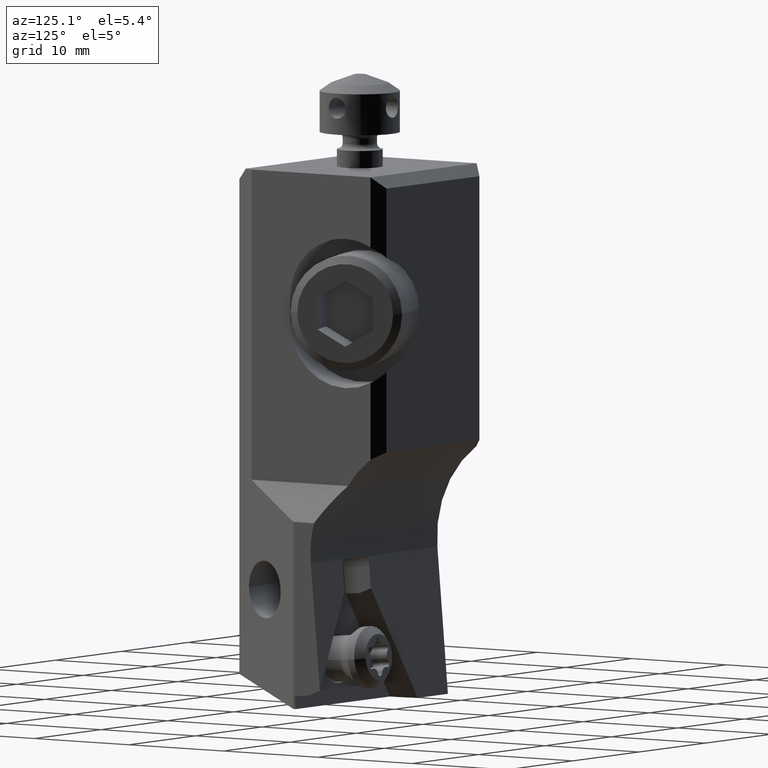
[diagram: clean part render]
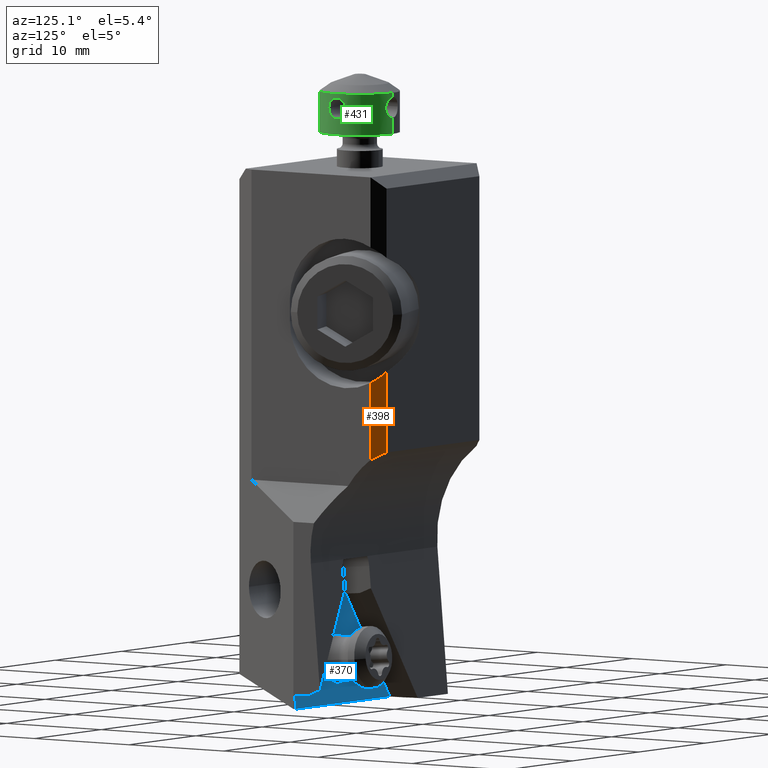
[diagram: same view with three faces highlighted in distinct colors, each labeled with its STEP entity id]
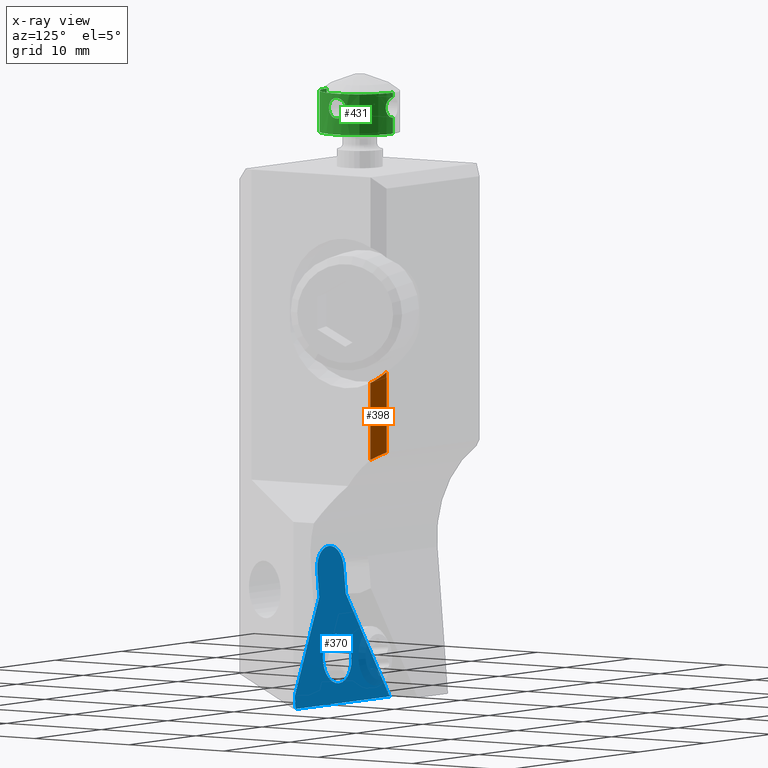
[diagram: x-ray of the same camera — body ghosted, the three highlighted faces saturated]
A machine part, auxiliary view with three faces highlighted in distinct colors.
The next image is the same camera in x-ray (body ghosted, the three faces saturated) — at least one of them is partly hidden behind the body in this view.
Their STEP definitions:

[orange] entity #398 — the highlighted planar face has unit normal (0.7071, 0.7071, 0).
#398=ADVANCED_FACE('',(#582),#527,.T.);
#527=PLANE('',#2741);
#582=FACE_OUTER_BOUND('',#723,.T.);
#723=EDGE_LOOP('',(#1429,#1430,#1431,#1432));
#890=LINE('',#3959,#1064);
#902=LINE('',#3998,#1076);
#1064=VECTOR('',#3162,1.);
#1076=VECTOR('',#3204,1.);
#1429=ORIENTED_EDGE('',*,*,#2246,.F.);
#1430=ORIENTED_EDGE('',*,*,#2198,.F.);
#1431=ORIENTED_EDGE('',*,*,#2266,.T.);
#1432=ORIENTED_EDGE('',*,*,#2248,.F.);
#1950=VERTEX_POINT('',#3862);
#1951=VERTEX_POINT('',#3864);
#1982=VERTEX_POINT('',#3960);
#1983=VERTEX_POINT('',#3964);
#2198=EDGE_CURVE('',#1950,#1951,#2536,.T.);
#2246=EDGE_CURVE('',#1951,#1982,#890,.T.);
#2248=EDGE_CURVE('',#1982,#1983,#2541,.T.);
#2266=EDGE_CURVE('',#1950,#1983,#902,.T.);
#2536=ELLIPSE('',#2680,14.142135623731,10.);
#2541=ELLIPSE('',#2713,6.06857855429567,5.5);
#2680=AXIS2_PLACEMENT_3D('',#3863,#3066,#3067);
#2713=AXIS2_PLACEMENT_3D('',#3963,#3167,#3168);
#2741=AXIS2_PLACEMENT_3D('',#4133,#3245,#3246);
#3066=DIRECTION('',(0.707106781186548,0.707106781186548,0.));
#3067=DIRECTION('',(-0.707106781186548,0.707106781186548,0.));
#3162=DIRECTION('',(1.64470596048E-13,-2.383471905157E-13,1.));
#3167=DIRECTION('',(0.707106781186548,0.707106781186548,0.));
#3168=DIRECTION('',(-0.707106781186548,0.707106781186548,0.));
#3204=DIRECTION('',(1.171265605603E-13,-2.995492731031E-13,1.));
#3245=DIRECTION('',(0.707106781186547,0.707106781186547,0.));
#3246=DIRECTION('',(0.707106781186547,-0.707106781186547,0.));
#3862=CARTESIAN_POINT('',(-1.0000000000003,15.5,-23.9708427524502));
#3863=CARTESIAN_POINT('',(-5.8086696392806,20.30866963928,-32.73877844452));
#3864=CARTESIAN_POINT('',(3.15417990871427E-13,14.5,-24.5987933694903));
#3959=CARTESIAN_POINT('',(-7.079522153693E-13,14.5,-24.59879336949));
#3960=CARTESIAN_POINT('',(1.97619698383605E-13,14.4999999999989,-17.8912624269099));
#3963=CARTESIAN_POINT('',(1.96226881240358,12.5377311875958,-13.));
#3964=CARTESIAN_POINT('',(-0.999999999999891,15.499999999999,-16.9792560530127));
#3998=CARTESIAN_POINT('',(-1.,15.5,-23.97084275245));
#4133=CARTESIAN_POINT('',(-0.5000000000006,15.,-20.78902471125));

[blue] entity #370 — the highlighted planar face has unit normal (0, 0.9962, 0.0872).
#138=FACE_BOUND('',#691,.T.);
#139=FACE_BOUND('',#692,.T.);
#229=CIRCLE('',#2688,1.999999999999);
#230=CIRCLE('',#2689,1.999999999999);
#233=CIRCLE('',#2696,2.149999999994);
#234=CIRCLE('',#2697,2.149999999994);
#370=ADVANCED_FACE('',(#138,#139),#507,.T.);
#507=PLANE('',#2698);
#691=EDGE_LOOP('',(#1271,#1272,#1273,#1274,#1275,#1276,#1277,#1278));
#692=EDGE_LOOP('',(#1279,#1280));
#869=LINE('',#3908,#1043);
#870=LINE('',#3910,#1044);
#871=LINE('',#3912,#1045);
#872=LINE('',#3914,#1046);
#873=LINE('',#3916,#1047);
#874=LINE('',#3917,#1048);
#1043=VECTOR('',#3109,1.);
#1044=VECTOR('',#3112,1.);
#1045=VECTOR('',#3113,1.);
#1046=VECTOR('',#3114,1.);
#1047=VECTOR('',#3115,1.);
#1048=VECTOR('',#3116,1.);
#1271=ORIENTED_EDGE('',*,*,#2222,.F.);
#1272=ORIENTED_EDGE('',*,*,#2221,.T.);
#1273=ORIENTED_EDGE('',*,*,#2223,.T.);
#1274=ORIENTED_EDGE('',*,*,#2224,.F.);
#1275=ORIENTED_EDGE('',*,*,#2225,.F.);
#1276=ORIENTED_EDGE('',*,*,#2208,.F.);
#1277=ORIENTED_EDGE('',*,*,#2207,.F.);
#1278=ORIENTED_EDGE('',*,*,#2226,.F.);
#1279=ORIENTED_EDGE('',*,*,#2227,.F.);
#1280=ORIENTED_EDGE('',*,*,#2228,.F.);
#1958=VERTEX_POINT('',#3881);
#1959=VERTEX_POINT('',#3883);
#1960=VERTEX_POINT('',#3885);
#1966=VERTEX_POINT('',#3904);
#1967=VERTEX_POINT('',#3907);
#1968=VERTEX_POINT('',#3911);
#1969=VERTEX_POINT('',#3913);
#1970=VERTEX_POINT('',#3915);
#1971=VERTEX_POINT('',#3919);
#1972=VERTEX_POINT('',#3920);
#2207=EDGE_CURVE('',#1958,#1959,#229,.T.);
#2208=EDGE_CURVE('',#1959,#1960,#230,.T.);
#2221=EDGE_CURVE('',#1966,#1967,#869,.T.);
#2222=EDGE_CURVE('',#1966,#1968,#870,.T.);
#2223=EDGE_CURVE('',#1967,#1969,#871,.T.);
#2224=EDGE_CURVE('',#1970,#1969,#872,.T.);
#2225=EDGE_CURVE('',#1960,#1970,#873,.T.);
#2226=EDGE_CURVE('',#1968,#1958,#874,.T.);
#2227=EDGE_CURVE('',#1971,#1972,#233,.T.);
#2228=EDGE_CURVE('',#1972,#1971,#234,.T.);
#2688=AXIS2_PLACEMENT_3D('',#3882,#3085,#3086);
#2689=AXIS2_PLACEMENT_3D('',#3884,#3087,#3088);
#2696=AXIS2_PLACEMENT_3D('',#3918,#3117,#3118);
#2697=AXIS2_PLACEMENT_3D('',#3921,#3119,#3120);
#2698=AXIS2_PLACEMENT_3D('',#3922,#3121,#3122);
#3085=DIRECTION('',(0.,-0.996194698091567,-0.0871557427496971));
#3086=DIRECTION('',(0.999990407858681,0.000381740070145801,-0.0043633089677254));
#3087=DIRECTION('',(0.,-0.996194698091567,-0.0871557427496971));
#3088=DIRECTION('',(0.,-0.0871557427496972,0.996194698091568));
#3109=DIRECTION('',(-3.21655640470508E-13,0.087155742747912,-0.996194698091723));
#3112=DIRECTION('',(-0.496202033360169,-0.0756692333341252,0.864903294719045));
#3113=DIRECTION('',(-1.,0.,-4.362512047084E-14));
#3114=DIRECTION('',(-0.503788374498488,0.0752874932640382,-0.860539985752079));
#3115=DIRECTION('',(-0.00437997609818303,0.0871549067376606,-0.996185142451407));
#3116=DIRECTION('',(0.00437997609794579,-0.0871549067371558,0.996185142451452));
#3117=DIRECTION('',(0.,0.996194698091544,0.0871557427499638));
#3118=DIRECTION('',(0.,-0.0871557427499636,0.996194698091543));
#3119=DIRECTION('',(0.,0.996194698091544,0.0871557427499638));
#3120=DIRECTION('',(0.,0.0871557427499636,-0.996194698091543));
#3121=DIRECTION('',(0.,0.996194698091742,0.0871557427477036));
#3122=DIRECTION('',(0.,0.0871557427477036,-0.996194698091742));
#3881=CARTESIAN_POINT('',(-1.611685207143,7.73536017747,-34.74135189727));
#3882=CARTESIAN_POINT('',(-3.61166602286,7.734596697332,-34.73262527933));
#3883=CARTESIAN_POINT('',(-3.61166602286,7.560285211833,-32.74023588315));
#3884=CARTESIAN_POINT('',(-3.61166602286,7.734596697332,-34.73262527933));
#3885=CARTESIAN_POINT('',(-5.611646838576,7.733833217191,-34.7238986614));
#3904=CARTESIAN_POINT('',(3.08,8.653331744864,-45.23381492504));
#3907=CARTESIAN_POINT('',(3.08,8.752002604162,-46.36162800757));
#3908=CARTESIAN_POINT('',(3.08,8.653331744864,-45.23381492504));
#3910=CARTESIAN_POINT('',(3.08,8.653331744864,-45.23381492504));
#3911=CARTESIAN_POINT('',(-1.621784684664,7.93632452105,-37.03838485538));
#3912=CARTESIAN_POINT('',(3.08,8.752002604162,-46.36162800757));
#3913=CARTESIAN_POINT('',(-11.09009680293,8.752002604162,-46.36162800757));
#3914=CARTESIAN_POINT('',(-5.621746316098,7.93479756077,-37.02093161951));
#3915=CARTESIAN_POINT('',(-5.621746316098,7.93479756077,-37.02093161951));
#3916=CARTESIAN_POINT('',(-5.611646838577,7.733833217189,-34.7238986614));
#3917=CARTESIAN_POINT('',(-1.621784684664,7.93632452105,-37.03838485538));
#3918=CARTESIAN_POINT('',(-3.645829836426,8.414404969887,-42.50286939045));
#3919=CARTESIAN_POINT('',(-3.645829836426,8.227020122975,-40.36105078956));
#3920=CARTESIAN_POINT('',(-3.645829836426,8.601789816799,-44.64468799134));
#3921=CARTESIAN_POINT('',(-3.645829836426,8.414404969887,-42.50286939045));
#3922=CARTESIAN_POINT('',(-4.005048401465,8.156143907998,-39.55093194536));

[green] entity #431 — the highlighted cylindrical surface (partial cylindrical patch) has radius 3.5 mm, axis along (0, 0, 1).
#74=B_SPLINE_CURVE_WITH_KNOTS('',3,(#4305,#4306,#4307,#4308,#4309,#4310,
#4311,#4312,#4313,#4314,#4315,#4316,#4317,#4318,#4319,#4320,#4321,#4322,
#4323,#4324,#4325,#4326),.UNSPECIFIED.,.F.,.F.,(4,1,1,1,1,1,1,1,1,1,1,1,
1,1,1,1,1,1,1,4),(0.,0.05263157894737,0.1052631578947,0.1578947368421,0.2105263157895,
0.2631578947368,0.3157894736842,0.3684210526316,0.4210526315789,0.4736842105263,
0.5263157894737,0.5789473684211,0.6315789473684,0.6842105263158,0.7368421052632,
0.7894736842105,0.8421052631579,0.8947368421053,0.9473684210526,1.),
 .UNSPECIFIED.);
#75=B_SPLINE_CURVE_WITH_KNOTS('',3,(#4328,#4329,#4330,#4331,#4332,#4333,
#4334,#4335,#4336,#4337,#4338,#4339,#4340,#4341,#4342,#4343,#4344,#4345,
#4346,#4347,#4348,#4349),.UNSPECIFIED.,.F.,.F.,(4,1,1,1,1,1,1,1,1,1,1,1,
1,1,1,1,1,1,1,4),(0.,0.05263157894737,0.1052631578947,0.1578947368421,0.2105263157895,
0.2631578947368,0.3157894736842,0.3684210526316,0.4210526315789,0.4736842105263,
0.5263157894737,0.5789473684211,0.6315789473684,0.6842105263158,0.7368421052632,
0.7894736842105,0.8421052631579,0.8947368421053,0.9473684210526,1.),
 .UNSPECIFIED.);
#76=B_SPLINE_CURVE_WITH_KNOTS('',3,(#4354,#4355,#4356,#4357,#4358,#4359,
#4360,#4361,#4362,#4363,#4364,#4365,#4366,#4367,#4368,#4369,#4370,#4371,
#4372,#4373,#4374,#4375),.UNSPECIFIED.,.F.,.F.,(4,1,1,1,1,1,1,1,1,1,1,1,
1,1,1,1,1,1,1,4),(0.,0.05263157894737,0.1052631578947,0.1578947368421,0.2105263157895,
0.2631578947368,0.3157894736842,0.3684210526316,0.4210526315789,0.4736842105263,
0.5263157894737,0.5789473684211,0.6315789473684,0.6842105263158,0.7368421052632,
0.7894736842105,0.8421052631579,0.8947368421053,0.9473684210526,1.),
 .UNSPECIFIED.);
#77=B_SPLINE_CURVE_WITH_KNOTS('',3,(#4377,#4378,#4379,#4380,#4381,#4382,
#4383,#4384,#4385,#4386,#4387,#4388,#4389,#4390,#4391,#4392,#4393,#4394,
#4395,#4396,#4397,#4398),.UNSPECIFIED.,.F.,.F.,(4,1,1,1,1,1,1,1,1,1,1,1,
1,1,1,1,1,1,1,4),(0.,0.05263157894737,0.1052631578947,0.1578947368421,0.2105263157895,
0.2631578947368,0.3157894736842,0.3684210526316,0.4210526315789,0.4736842105263,
0.5263157894737,0.5789473684211,0.6315789473684,0.6842105263158,0.7368421052632,
0.7894736842105,0.8421052631579,0.8947368421053,0.9473684210526,1.),
 .UNSPECIFIED.);
#78=B_SPLINE_CURVE_WITH_KNOTS('',3,(#4403,#4404,#4405,#4406,#4407,#4408,
#4409,#4410,#4411,#4412,#4413,#4414,#4415,#4416,#4417,#4418,#4419,#4420,
#4421,#4422,#4423,#4424,#4425,#4426,#4427,#4428,#4429,#4430,#4431,#4432,
#4433),.UNSPECIFIED.,.F.,.F.,(4,3,3,3,3,3,3,3,3,3,4),(0.,0.10499181573253,
0.209833584549119,0.316913861721892,0.425643838817805,0.532012948903621,
0.635811937228342,0.740586222170034,0.848427228178288,0.956892987707002,
1.),.UNSPECIFIED.);
#79=B_SPLINE_CURVE_WITH_KNOTS('',3,(#4436,#4437,#4438,#4439,#4440,#4441,
#4442,#4443,#4444,#4445,#4446,#4447,#4448,#4449,#4450,#4451,#4452,#4453,
#4454,#4455,#4456,#4457,#4458,#4459,#4460,#4461,#4462,#4463,#4464,#4465,
#4466),.UNSPECIFIED.,.F.,.F.,(4,3,3,3,3,3,3,3,3,3,4),(0.,0.10499181573253,
0.209833584549118,0.316913861721892,0.425643838817805,0.532012948903621,
0.635811937228341,0.740586222170035,0.848427228178287,0.956892987707002,
1.),.UNSPECIFIED.);
#150=FACE_BOUND('',#758,.T.);
#151=FACE_BOUND('',#759,.T.);
#189=CYLINDRICAL_SURFACE('',#2831,3.5);
#297=CIRCLE('',#2827,3.5);
#299=CIRCLE('',#2830,3.5);
#431=ADVANCED_FACE('',(#150,#151),#189,.T.);
#758=EDGE_LOOP('',(#1591,#1592,#1593,#1594,#1595,#1596,#1597,#1598,#1599,
#1600));
#759=EDGE_LOOP('',(#1601,#1602));
#939=LINE('',#4302,#1113);
#940=LINE('',#4351,#1114);
#941=LINE('',#4352,#1115);
#942=LINE('',#4400,#1116);
#1113=VECTOR('',#3449,1.);
#1114=VECTOR('',#3450,1.);
#1115=VECTOR('',#3451,1.);
#1116=VECTOR('',#3452,1.);
#1591=ORIENTED_EDGE('',*,*,#2368,.T.);
#1592=ORIENTED_EDGE('',*,*,#2369,.T.);
#1593=ORIENTED_EDGE('',*,*,#2370,.F.);
#1594=ORIENTED_EDGE('',*,*,#2371,.T.);
#1595=ORIENTED_EDGE('',*,*,#2366,.T.);
#1596=ORIENTED_EDGE('',*,*,#2372,.T.);
#1597=ORIENTED_EDGE('',*,*,#2373,.T.);
#1598=ORIENTED_EDGE('',*,*,#2374,.F.);
#1599=ORIENTED_EDGE('',*,*,#2375,.T.);
#1600=ORIENTED_EDGE('',*,*,#2376,.T.);
#1601=ORIENTED_EDGE('',*,*,#2377,.T.);
#1602=ORIENTED_EDGE('',*,*,#2378,.T.);
#2057=VERTEX_POINT('',#4297);
#2058=VERTEX_POINT('',#4298);
#2059=VERTEX_POINT('',#4303);
#2060=VERTEX_POINT('',#4304);
#2061=VERTEX_POINT('',#4327);
#2062=VERTEX_POINT('',#4350);
#2063=VERTEX_POINT('',#4353);
#2064=VERTEX_POINT('',#4376);
#2065=VERTEX_POINT('',#4399);
#2066=VERTEX_POINT('',#4401);
#2067=VERTEX_POINT('',#4434);
#2068=VERTEX_POINT('',#4435);
#2366=EDGE_CURVE('',#2058,#2057,#297,.T.);
#2368=EDGE_CURVE('',#2059,#2060,#939,.T.);
#2369=EDGE_CURVE('',#2060,#2061,#74,.T.);
#2370=EDGE_CURVE('',#2062,#2061,#75,.T.);
#2371=EDGE_CURVE('',#2062,#2058,#940,.T.);
#2372=EDGE_CURVE('',#2057,#2063,#941,.T.);
#2373=EDGE_CURVE('',#2063,#2064,#76,.T.);
#2374=EDGE_CURVE('',#2065,#2064,#77,.T.);
#2375=EDGE_CURVE('',#2065,#2066,#942,.T.);
#2376=EDGE_CURVE('',#2066,#2059,#299,.T.);
#2377=EDGE_CURVE('',#2067,#2068,#78,.T.);
#2378=EDGE_CURVE('',#2068,#2067,#79,.T.);
#2827=AXIS2_PLACEMENT_3D('',#4299,#3443,#3444);
#2830=AXIS2_PLACEMENT_3D('',#4402,#3453,#3454);
#2831=AXIS2_PLACEMENT_3D('',#4467,#3455,#3456);
#3443=DIRECTION('',(0.,0.,1.));
#3444=DIRECTION('',(0.,-1.,0.));
#3449=DIRECTION('',(0.,1.242033891488E-13,-1.));
#3450=DIRECTION('',(0.,0.,-1.));
#3451=DIRECTION('',(0.,0.,1.));
#3452=DIRECTION('',(0.,1.1942633572E-13,1.));
#3453=DIRECTION('',(0.,0.,-1.));
#3454=DIRECTION('',(0.,1.,0.));
#3455=DIRECTION('',(0.,0.,1.));
#3456=DIRECTION('',(0.,1.,0.));
#4297=CARTESIAN_POINT('',(-8.,11.25,3.));
#4298=CARTESIAN_POINT('',(-8.,4.25,3.));
#4299=CARTESIAN_POINT('',(-8.,7.75,3.));
#4302=CARTESIAN_POINT('',(-8.,4.25,6.571851993258));
#4303=CARTESIAN_POINT('',(-8.,4.25,6.571851993258));
#4304=CARTESIAN_POINT('',(-8.,4.25,6.2));
#4305=CARTESIAN_POINT('',(-8.,4.25,6.2));
#4306=CARTESIAN_POINT('',(-7.975528366086,4.25,6.2));
#4307=CARTESIAN_POINT('',(-7.926544826669,4.25051462128,6.198001794632));
#4308=CARTESIAN_POINT('',(-7.853479382279,4.25281558866,6.189011673293));
#4309=CARTESIAN_POINT('',(-7.781194034684,4.256599814623,6.17403864583));
#4310=CARTESIAN_POINT('',(-7.710183415939,4.261782133195,6.153135718064));
#4311=CARTESIAN_POINT('',(-7.640789139589,4.268255807441,6.126328339826));
#4312=CARTESIAN_POINT('',(-7.57360337975,4.275858910901,6.093757206634));
#4313=CARTESIAN_POINT('',(-7.509063740849,4.284407144395,6.055556303835));
#4314=CARTESIAN_POINT('',(-7.447670092961,4.293680547217,6.011915666068));
#4315=CARTESIAN_POINT('',(-7.390075465133,4.303399616179,5.963243919655));
#4316=CARTESIAN_POINT('',(-7.336617653108,4.313311546405,5.909775289867));
#4317=CARTESIAN_POINT('',(-7.28793807326,4.323090530317,5.852141715624));
#4318=CARTESIAN_POINT('',(-7.244311846029,4.332468553585,5.790735561016));
#4319=CARTESIAN_POINT('',(-7.206091258637,4.341166207263,5.7261173964));
#4320=CARTESIAN_POINT('',(-7.173540618377,4.348930427166,5.6589102918));
#4321=CARTESIAN_POINT('',(-7.146751806097,4.355568237208,5.589484300841));
#4322=CARTESIAN_POINT('',(-7.125891384683,4.360893044464,5.518518813551));
#4323=CARTESIAN_POINT('',(-7.110953321242,4.364790275313,5.44629347711));
#4324=CARTESIAN_POINT('',(-7.101991829057,4.367162150465,5.373337379044));
#4325=CARTESIAN_POINT('',(-7.1,4.367693094942,5.324430439657));
#4326=CARTESIAN_POINT('',(-7.1,4.367693094942,5.3));
#4327=CARTESIAN_POINT('',(-7.1,4.367693094942,5.3));
#4328=CARTESIAN_POINT('',(-8.,4.25,4.4));
#4329=CARTESIAN_POINT('',(-7.975477382717,4.25,4.4));
#4330=CARTESIAN_POINT('',(-7.926568706608,4.250514667545,4.401998389217));
#4331=CARTESIAN_POINT('',(-7.853481770969,4.252815227636,4.410986906552));
#4332=CARTESIAN_POINT('',(-7.781198895515,4.256599609341,4.425960538003));
#4333=CARTESIAN_POINT('',(-7.710192013506,4.26178141116,4.446861347925));
#4334=CARTESIAN_POINT('',(-7.640796286946,4.268255049269,4.473668447185));
#4335=CARTESIAN_POINT('',(-7.57360814189,4.275858341985,4.506240341439));
#4336=CARTESIAN_POINT('',(-7.509072678961,4.284405870373,4.544437840665));
#4337=CARTESIAN_POINT('',(-7.447672651945,4.293680116763,4.588082216629));
#4338=CARTESIAN_POINT('',(-7.390079089331,4.303398972904,4.636752716895));
#4339=CARTESIAN_POINT('',(-7.33661759029,4.313311546195,4.69022465327));
#4340=CARTESIAN_POINT('',(-7.287938770662,4.323090389691,4.747857447401));
#4341=CARTESIAN_POINT('',(-7.244311287819,4.332468666241,4.809265047192));
#4342=CARTESIAN_POINT('',(-7.206088840315,4.341166770452,4.873887095563));
#4343=CARTESIAN_POINT('',(-7.173538935276,4.348930833207,4.941093326671));
#4344=CARTESIAN_POINT('',(-7.146747906467,4.355569217232,5.010526780539));
#4345=CARTESIAN_POINT('',(-7.125889888042,4.360893432802,5.081488576882));
#4346=CARTESIAN_POINT('',(-7.11095062191,4.36479098407,5.15371621635));
#4347=CARTESIAN_POINT('',(-7.101992000407,4.36716210702,5.226690109544));
#4348=CARTESIAN_POINT('',(-7.1,4.367693094942,5.275516094886));
#4349=CARTESIAN_POINT('',(-7.1,4.367693094942,5.3));
#4350=CARTESIAN_POINT('',(-8.,4.25,4.4));
#4351=CARTESIAN_POINT('',(-8.,4.25,4.4));
#4352=CARTESIAN_POINT('',(-8.,11.25,3.));
#4353=CARTESIAN_POINT('',(-8.,11.25,4.4));
#4354=CARTESIAN_POINT('',(-8.,11.25,4.4));
#4355=CARTESIAN_POINT('',(-7.975528343856,11.25,4.4));
#4356=CARTESIAN_POINT('',(-7.92654472204,11.24948539611,4.40199813585));
#4357=CARTESIAN_POINT('',(-7.853476188022,11.24718427511,4.41098886404));
#4358=CARTESIAN_POINT('',(-7.781193474827,11.24340015022,4.425961490226));
#4359=CARTESIAN_POINT('',(-7.710180612846,11.23821762822,4.446865262702));
#4360=CARTESIAN_POINT('',(-7.640790523769,11.23174431971,4.473671130755));
#4361=CARTESIAN_POINT('',(-7.573603944865,11.22414115907,4.506242496091));
#4362=CARTESIAN_POINT('',(-7.509065845508,11.21559315351,4.544442325775));
#4363=CARTESIAN_POINT('',(-7.447670515478,11.20631952233,4.588084000082));
#4364=CARTESIAN_POINT('',(-7.390077415507,11.1966007248,4.63675432874));
#4365=CARTESIAN_POINT('',(-7.336618367409,11.18668860012,4.690223830059));
#4366=CARTESIAN_POINT('',(-7.287938720465,11.17690959426,4.747857622329));
#4367=CARTESIAN_POINT('',(-7.244314876768,11.16753211609,4.809259799247));
#4368=CARTESIAN_POINT('',(-7.206092224323,11.15883402302,4.873880674888));
#4369=CARTESIAN_POINT('',(-7.173542095797,11.15106992919,4.941086469605));
#4370=CARTESIAN_POINT('',(-7.146753027394,11.14443207217,5.010511940696));
#4371=CARTESIAN_POINT('',(-7.125891808928,11.13910706555,5.081479460376));
#4372=CARTESIAN_POINT('',(-7.110953752479,11.1352098381,5.153703789408));
#4373=CARTESIAN_POINT('',(-7.101991772871,11.1328378349,5.226662565198));
#4374=CARTESIAN_POINT('',(-7.1,11.13230690506,5.275569598147));
#4375=CARTESIAN_POINT('',(-7.1,11.13230690506,5.3));
#4376=CARTESIAN_POINT('',(-7.1,11.13230690506,5.3));
#4377=CARTESIAN_POINT('',(-8.,11.25,6.2));
#4378=CARTESIAN_POINT('',(-7.97547742026,11.25,6.2));
#4379=CARTESIAN_POINT('',(-7.926568796491,11.24948532591,6.198001584446));
#4380=CARTESIAN_POINT('',(-7.853483130075,11.24718483154,6.18901332716));
#4381=CARTESIAN_POINT('',(-7.781198934322,11.24340039346,6.174039470858));
#4382=CARTESIAN_POINT('',(-7.7101928387,11.23821866487,6.153138968673));
#4383=CARTESIAN_POINT('',(-7.640794460305,11.23174476939,6.12633079162));
#4384=CARTESIAN_POINT('',(-7.573607180058,11.22414154017,6.093759150754));
#4385=CARTESIAN_POINT('',(-7.509070408874,11.21559380829,6.055560683744));
#4386=CARTESIAN_POINT('',(-7.447671807883,11.20631974588,6.011917119205));
#4387=CARTESIAN_POINT('',(-7.390077230862,11.19660069993,5.963245592732));
#4388=CARTESIAN_POINT('',(-7.336616979521,11.18668832861,5.909774597701));
#4389=CARTESIAN_POINT('',(-7.28793828399,11.17690951512,5.852142030256));
#4390=CARTESIAN_POINT('',(-7.244309575561,11.1675309536,5.790732285073));
#4391=CARTESIAN_POINT('',(-7.206088738639,11.15883320282,5.72611264593));
#4392=CARTESIAN_POINT('',(-7.173538209286,11.1510689921,5.658905075478));
#4393=CARTESIAN_POINT('',(-7.146747633818,11.14443071262,5.58947232135));
#4394=CARTESIAN_POINT('',(-7.125889764267,11.13910653533,5.518510895586));
#4395=CARTESIAN_POINT('',(-7.110950628106,11.13520901738,5.446283745935));
#4396=CARTESIAN_POINT('',(-7.101992013563,11.13283789652,5.373310047309));
#4397=CARTESIAN_POINT('',(-7.1,11.13230690506,5.324483990668));
#4398=CARTESIAN_POINT('',(-7.1,11.13230690506,5.3));
#4399=CARTESIAN_POINT('',(-8.,11.25,6.2));
#4400=CARTESIAN_POINT('',(-8.,11.25,6.2));
#4401=CARTESIAN_POINT('',(-8.,11.25,6.571851993258));
#4402=CARTESIAN_POINT('',(-8.,7.75,6.571851993258));
#4403=CARTESIAN_POINT('',(-4.61769309494245,8.65,5.3));
#4404=CARTESIAN_POINT('',(-4.61769309494245,8.65,5.20113907042153));
#4405=CARTESIAN_POINT('',(-4.61311186909859,8.63321972880385,5.10092207051458));
#4406=CARTESIAN_POINT('',(-4.60508865025753,8.60122084525096,5.00772774231851));
#4407=CARTESIAN_POINT('',(-4.59707197340127,8.56924805299807,4.91460940306033));
#4408=CARTESIAN_POINT('',(-4.58548916099059,8.52128239169595,4.82594755173468));
#4409=CARTESIAN_POINT('',(-4.57302721042512,8.46123659882864,4.74850883915818));
#4410=CARTESIAN_POINT('',(-4.56030319763378,8.39992810362193,4.66944166871874));
#4411=CARTESIAN_POINT('',(-4.54640554515131,8.32435156709237,4.59989193342964));
#4412=CARTESIAN_POINT('',(-4.53452185763585,8.24036847859171,4.54532208512263));
#4413=CARTESIAN_POINT('',(-4.5224656845741,8.15516641922188,4.48996018383676));
#4414=CARTESIAN_POINT('',(-4.51223293580563,8.05884492782213,4.44850190486802));
#4415=CARTESIAN_POINT('',(-4.50627584852322,7.95950311068775,4.42472378838897));
#4416=CARTESIAN_POINT('',(-4.50044708754594,7.86230129381415,4.40145789502939));
#4417=CARTESIAN_POINT('',(-4.49859548176426,7.75945630609584,4.39450153609255));
#4418=CARTESIAN_POINT('',(-4.50116055255406,7.65987497020153,4.40452388138833));
#4419=CARTESIAN_POINT('',(-4.50366593327994,7.56261092563813,4.41431300332291));
#4420=CARTESIAN_POINT('',(-4.51041881955982,7.46581593627306,4.44051656279882));
#4421=CARTESIAN_POINT('',(-4.51990761854353,7.37723061213582,4.48082786700757));
#4422=CARTESIAN_POINT('',(-4.52948823600255,7.28778809106451,4.52152924402706));
#4423=CARTESIAN_POINT('',(-4.54204558868293,7.20429416356227,4.57764928835355));
#4424=CARTESIAN_POINT('',(-4.554810554779,7.13301565130237,4.64476697773833));
#4425=CARTESIAN_POINT('',(-4.56793992794358,7.05970232018716,4.71380070514853));
#4426=CARTESIAN_POINT('',(-4.58156426430147,6.99728997086711,4.79639114983453));
#4427=CARTESIAN_POINT('',(-4.5924554789637,6.95085024109654,4.88604388777971));
#4428=CARTESIAN_POINT('',(-4.60340160025291,6.90417639153316,4.97614859821775));
#4429=CARTESIAN_POINT('',(-4.61178864630687,6.87237168858722,5.07600848487481));
#4430=CARTESIAN_POINT('',(-4.6154591784393,6.85843764817641,5.17705052740741));
#4431=CARTESIAN_POINT('',(-4.61693676231244,6.85282845783129,5.21772530892921));
#4432=CARTESIAN_POINT('',(-4.61769309494245,6.85,5.25891369909232));
#4433=CARTESIAN_POINT('',(-4.61769309494245,6.85,5.3));
#4434=CARTESIAN_POINT('',(-4.61769309494245,8.65,5.3));
#4435=CARTESIAN_POINT('',(-4.61769309494245,6.85,5.3));
#4436=CARTESIAN_POINT('',(-4.61769309494245,6.85,5.3));
#4437=CARTESIAN_POINT('',(-4.61769309494245,6.85,5.39886092957848));
#4438=CARTESIAN_POINT('',(-4.61311186909859,6.86678027119615,5.49907792948542));
#4439=CARTESIAN_POINT('',(-4.60508865025753,6.89877915474904,5.59227225768149));
#4440=CARTESIAN_POINT('',(-4.59707197340127,6.93075194700193,5.68539059693967));
#4441=CARTESIAN_POINT('',(-4.58548916099059,6.97871760830405,5.77405244826532));
#4442=CARTESIAN_POINT('',(-4.57302721042512,7.03876340117136,5.85149116084182));
#4443=CARTESIAN_POINT('',(-4.56030319763378,7.10007189637807,5.93055833128126));
#4444=CARTESIAN_POINT('',(-4.54640554515131,7.17564843290763,6.00010806657036));
#4445=CARTESIAN_POINT('',(-4.53452185763585,7.25963152140829,6.05467791487737));
#4446=CARTESIAN_POINT('',(-4.5224656845741,7.34483358077812,6.11003981616324));
#4447=CARTESIAN_POINT('',(-4.51223293580563,7.44115507217787,6.15149809513198));
#4448=CARTESIAN_POINT('',(-4.50627584852322,7.54049688931225,6.17527621161103));
#4449=CARTESIAN_POINT('',(-4.50044708754594,7.63769870618585,6.19854210497061));
#4450=CARTESIAN_POINT('',(-4.49859548176426,7.74054369390416,6.20549846390745));
#4451=CARTESIAN_POINT('',(-4.50116055255406,7.84012502979847,6.19547611861167));
#4452=CARTESIAN_POINT('',(-4.50366593327994,7.93738907436187,6.18568699667709));
#4453=CARTESIAN_POINT('',(-4.51041881955982,8.03418406372694,6.15948343720118));
#4454=CARTESIAN_POINT('',(-4.51990761854353,8.12276938786418,6.11917213299243));
#4455=CARTESIAN_POINT('',(-4.52948823600255,8.21221190893549,6.07847075597294));
#4456=CARTESIAN_POINT('',(-4.54204558868293,8.29570583643773,6.02235071164645));
#4457=CARTESIAN_POINT('',(-4.554810554779,8.36698434869763,5.95523302226167));
#4458=CARTESIAN_POINT('',(-4.56793992794358,8.44029767981284,5.88619929485147));
#4459=CARTESIAN_POINT('',(-4.58156426430147,8.50271002913289,5.80360885016547));
#4460=CARTESIAN_POINT('',(-4.5924554789637,8.54914975890346,5.71395611222029));
#4461=CARTESIAN_POINT('',(-4.60340160025291,8.59582360846684,5.62385140178225));
#4462=CARTESIAN_POINT('',(-4.61178864630687,8.62762831141278,5.52399151512519));
#4463=CARTESIAN_POINT('',(-4.6154591784393,8.64156235182359,5.42294947259259));
#4464=CARTESIAN_POINT('',(-4.61693676231244,8.64717154216871,5.38227469107079));
#4465=CARTESIAN_POINT('',(-4.61769309494245,8.65,5.34108630090768));
#4466=CARTESIAN_POINT('',(-4.61769309494245,8.65,5.3));
#4467=CARTESIAN_POINT('',(-8.,7.75,2.928562960135));